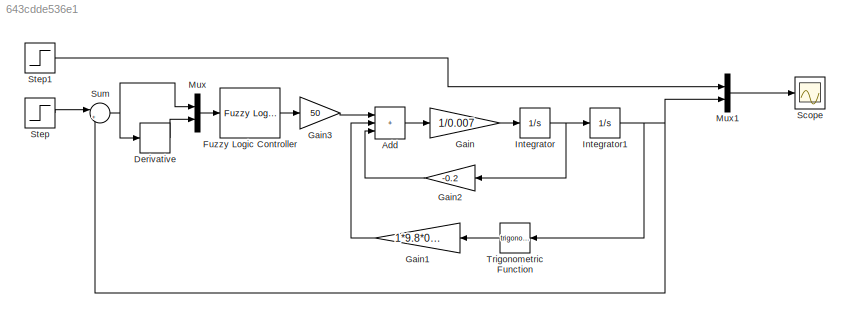
MODEL slx_643cdde536e1
KIND model
CONFIG AbsTol = 1e-3
CONFIG EnableMultiTasking = off
CONFIG FixedStep = auto
CONFIG MaxStep = 0.1
CONFIG MinStep = auto
CONFIG PreLoadFcn = fisMatrix=readfis('shower'); k=1;
CONFIG RelTol = 1e-3
CONFIG SampleTimeConstraint = Unconstrained
CONFIG SolverName = ode45
CONFIG StartTime = 0
CONFIG StopTime = 10
BLOCK [Sum] Add
  IconShape = rectangular
  Inputs = +++
BLOCK [Derivative] Derivative
BLOCK [Reference] Fuzzy Logic Controller  REF=fuzblock/Fuzzy Logic   (lib defined in mdl_858b3b3e7478)
Controller
  SourceBlock = fuzblock/Fuzzy Logic \nController
  SourceType = Fuzzy Inference System
BLOCK [Gain] Gain
  Gain = 1/0.007
BLOCK [Gain] Gain1
  Gain = 1*9.8*0.5
BLOCK [Gain] Gain2
  Gain = -0.2
BLOCK [Gain] Gain3
  Gain = 50
BLOCK [Integrator] Integrator
BLOCK [Integrator] Integrator1
BLOCK [Mux] Mux
  DisplayOption = bar
  Inputs = 2
BLOCK [Mux] Mux1
  DisplayOption = bar
  Inputs = 2
BLOCK [Scope] Scope
  Floating = off
  NumInputPorts = 1
  ScopeSpecificationString = Simulink.scopes.TimeScopeBlockCfg('CurrentConfiguration', extmgr.ConfigurationSet(extmgr.Configuration('Core','General UI',true),extmgr.Configuration('Core','Source UI',true),extmgr.Configuration('Sources','WiredSimulink',true,'DataLoggingSaveFormat','StructureWithTime','DataLoggingLimitDataPoints',true,'DataLoggingDecimation','1','DataLoggingDecimateData',true),extmgr.Configuration('Visuals','Tim...<+1769ch>
BLOCK [Step] Step
  After = pi/2
  SampleTime = 0
  Time = 0
BLOCK [Step] Step1
  After = pi/2
  SampleTime = 0
  Time = 0
BLOCK [Sum] Sum
  Inputs = |+-
BLOCK [Trigonometry] Trigonometric Function
LINE Add:1 -> Gain:1
LINE Derivative:1 -> Mux:2
LINE Fuzzy Logic Controller:1 -> Gain3:1
LINE Gain1:1 -> Add:2
LINE Gain2:1 -> Add:3
LINE Gain3:1 -> Add:1
LINE Gain:1 -> Integrator:1
NET Integrator1:1 -> Mux1:2, Sum:2, Trigonometric Function:1
NET Integrator:1 -> Gain2:1, Integrator1:1
LINE Mux1:1 -> Scope:1
LINE Mux:1 -> Fuzzy Logic Controller:1
LINE Step1:1 -> Mux1:1
LINE Step:1 -> Sum:1
NET Sum:1 -> Derivative:1, Mux:1
LINE Trigonometric Function:1 -> Gain1:1
note: NET lines group one-source signal fan-out (src -> all destinations, sorted); 1:1 wires keep LINE
